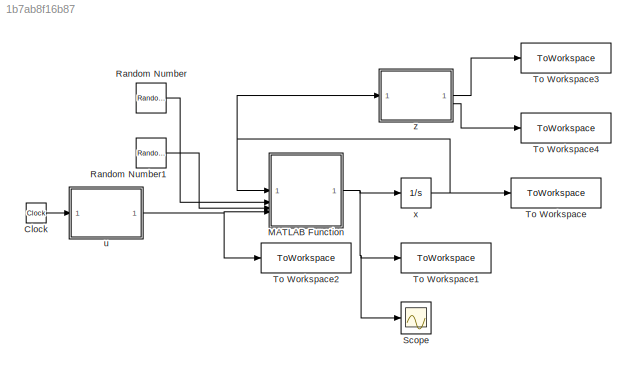
MODEL slx_1b7ab8f16b87
KIND model
CONFIG AbsTol = auto
CONFIG EnableMultiTasking = off
CONFIG FixedStep = Step_T
CONFIG InitFcn = run("P_sim.m")
CONFIG MaxStep = auto
CONFIG MinStep = auto
CONFIG RelTol = 1e-3
CONFIG SampleTimeConstraint = Unconstrained
CONFIG SolverName = FixedStepAuto
CONFIG StartTime = 0.0
CONFIG StopTime = Time-Step_T
BLOCK [Clock] Clock
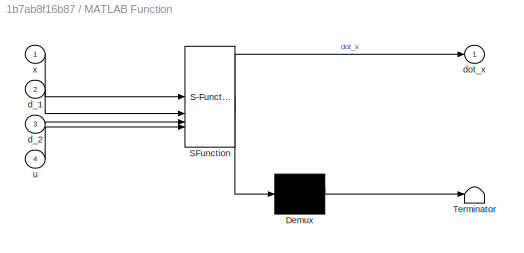
BLOCK [SubSystem] MATLAB Function
  ErrorFcn = Stateflow.Translate.translate
  PermitHierarchicalResolution = ExplicitOnly
  SFBlockType = MATLAB Function
  TreatAsAtomicUnit = on
BLOCK [Demux] MATLAB Function/ Demux 
  Outputs = 1
BLOCK [S-Function] MATLAB Function/ SFunction 
  EnableBusSupport = on
  FunctionName = sf_sfun
  Parameters = pam
  PortCounts = [4 2]
  SFcnIsStateOwnerBlock = off
  SFunctionDeploymentMode = off
  Tag = Stateflow S-Function 2
BLOCK [Terminator] MATLAB Function/ Terminator 
BLOCK [Inport] MATLAB Function/d_1
  Port = 2
BLOCK [Inport] MATLAB Function/d_2
  Port = 3
BLOCK [Outport] MATLAB Function/dot_x
BLOCK [Inport] MATLAB Function/u
  Port = 4
BLOCK [Inport] MATLAB Function/x
BLOCK [RandomNumber] Random Number
  SampleTime = Step_T
  Seed = -seed
  Variance = pam.d*pam.d
BLOCK [RandomNumber] Random Number1
  SampleTime = Step_T
  Seed = seed
  Variance = pam.d*pam.d
BLOCK [Scope] Scope
  Floating = off
  NumInputPorts = 1
  ScopeSpecificationString = Simulink.scopes.TimeScopeBlockCfg('CurrentConfiguration', extmgr.ConfigurationSet(extmgr.Configuration('Core','General UI',true),extmgr.Configuration('Core','Source UI',true),extmgr.Configuration('Sources','WiredSimulink',true),extmgr.Configuration('Visuals','Time Domain',true,'SerializedDisplays',{struct('MinYLimReal','-3.56017','MaxYLimReal','19.5415','YLabelReal','','MinYLimMag','0.00000','MaxY...<+1511ch>
BLOCK [ToWorkspace] To Workspace
  FixptAsFi = on
  MaxDataPoints = inf
  SampleTime = T
  SaveFormat = Timeseries
  VariableName = x
BLOCK [ToWorkspace] To Workspace1
  FixptAsFi = on
  MaxDataPoints = inf
  SampleTime = T
  SaveFormat = Timeseries
  VariableName = dot_x
BLOCK [ToWorkspace] To Workspace2
  FixptAsFi = on
  MaxDataPoints = inf
  SampleTime = T
  SaveFormat = Timeseries
  VariableName = u
BLOCK [ToWorkspace] To Workspace3
  FixptAsFi = on
  MaxDataPoints = inf
  SampleTime = T
  SaveFormat = Timeseries
  VariableName = z_1
BLOCK [ToWorkspace] To Workspace4
  FixptAsFi = on
  MaxDataPoints = inf
  SampleTime = T
  SaveFormat = Timeseries
  VariableName = z_2
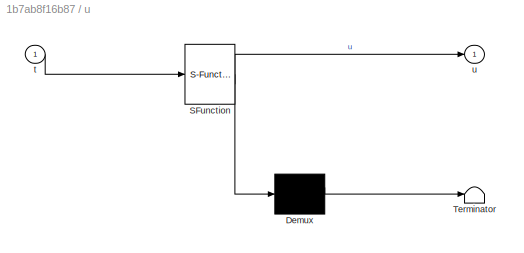
BLOCK [SubSystem] u
  ErrorFcn = Stateflow.Translate.translate
  PermitHierarchicalResolution = ExplicitOnly
  SFBlockType = MATLAB Function
  TreatAsAtomicUnit = on
BLOCK [Demux] u/ Demux 
  Outputs = 1
BLOCK [S-Function] u/ SFunction 
  EnableBusSupport = on
  FunctionName = sf_sfun
  PortCounts = [1 2]
  SFcnIsStateOwnerBlock = off
  SFunctionDeploymentMode = off
  Tag = Stateflow S-Function 1
BLOCK [Terminator] u/ Terminator 
BLOCK [Inport] u/t
BLOCK [Outport] u/u
BLOCK [Integrator] x
  InitialCondition = [x_1_0;x_2_0]
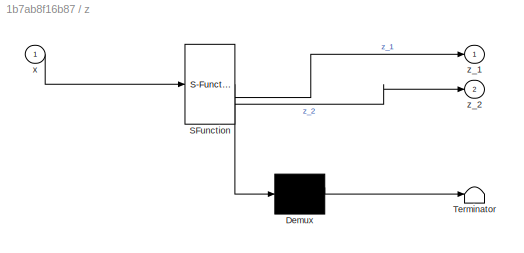
BLOCK [SubSystem] z
  ErrorFcn = Stateflow.Translate.translate
  PermitHierarchicalResolution = ExplicitOnly
  SFBlockType = MATLAB Function
  TreatAsAtomicUnit = on
BLOCK [Demux] z/ Demux 
  Outputs = 1
BLOCK [S-Function] z/ SFunction 
  EnableBusSupport = on
  FunctionName = sf_sfun
  PortCounts = [1 3]
  SFcnIsStateOwnerBlock = off
  SFunctionDeploymentMode = off
  Tag = Stateflow S-Function 3
BLOCK [Terminator] z/ Terminator 
BLOCK [Inport] z/x
BLOCK [Outport] z/z_1
BLOCK [Outport] z/z_2
  Port = 2
LINE Clock:1 -> u:1
NET MATLAB Function:1 -> Scope:1, To Workspace1:1, x:1
LINE Random Number1:1 -> MATLAB Function:3
LINE Random Number:1 -> MATLAB Function:2
NET u:1 -> MATLAB Function:4, To Workspace2:1
NET x:1 -> MATLAB Function:1, To Workspace:1, z:1
LINE z:1 -> To Workspace3:1
LINE z:2 -> To Workspace4:1
note: NET lines group one-source signal fan-out (src -> all destinations, sorted); 1:1 wires keep LINE
CHART u states=1 transitions=1
  STATE_LABEL 'eML_blk_kernel()'
  STATE_LABEL 'SCRIPT:\nfunction u  = fcn(t)\n\nu = -0.5+t;'
CHART MATLAB Function states=1 transitions=1
  STATE_LABEL 'eML_blk_kernel()'
  STATE_LABEL 'SCRIPT:\nfunction dot_x  = fcn(x,d_1,d_2,u,pam)\n\nx_1 = x(1);\nx_2 = x(2);\n\ndot_x_1 = x_2-(1/pam.beta_1-pam.rho_1+sqrt(2))*x_1+cos(x_1)+d_1;\ndot_x_2 = u+sqrt(5)*x_1-(1/pam.beta_2-pam.rho_2)*x_2+sqrt(2)*sin(x_1)*cos(x_2)+d_2;\n\ndot_x = [dot_x_1;dot_x_2];'
CHART z states=1 transitions=1
  STATE_LABEL 'eML_blk_kernel()'
  STATE_LABEL 'SCRIPT:\nfunction [z_1,z_2]  = fcn(x)\n\nx_1 = x(1);\nx_2 = x(2);\n\nz_1 = [x_1;cos(x_1)];\nz_2 = [x_1;x_2;sin(x_1)*cos(x_2)];'
CHART  states=0 transitions=0
CHART  states=0 transitions=0
CHART  states=0 transitions=0
